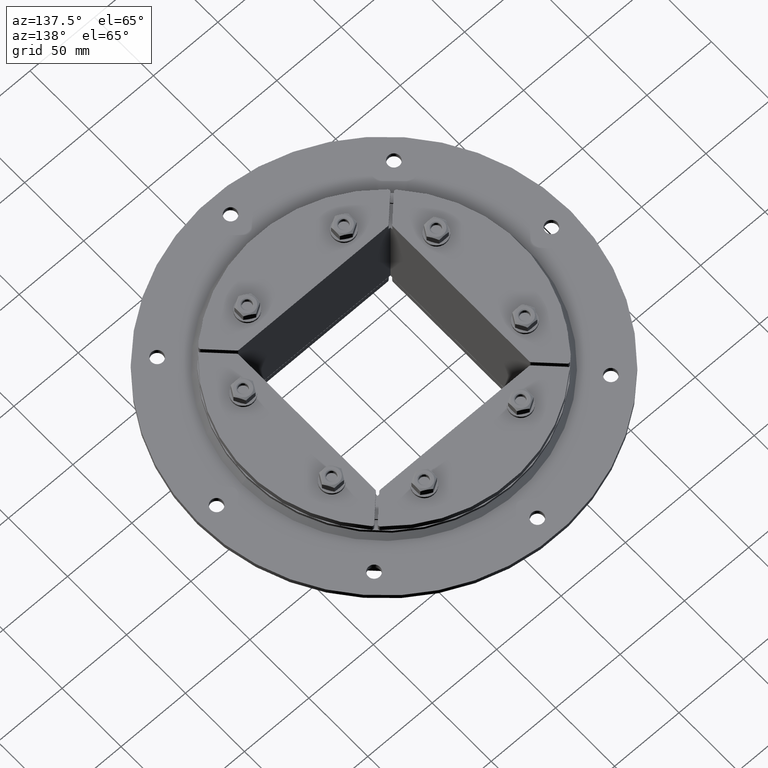
[diagram: clean part render]
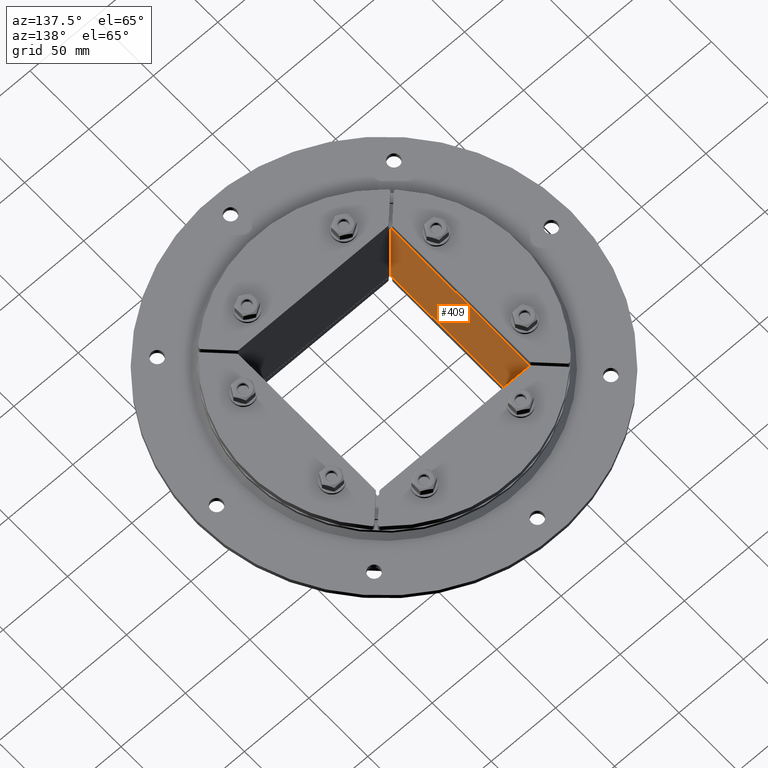
[diagram: same view with one face highlighted and labeled with its STEP entity id]
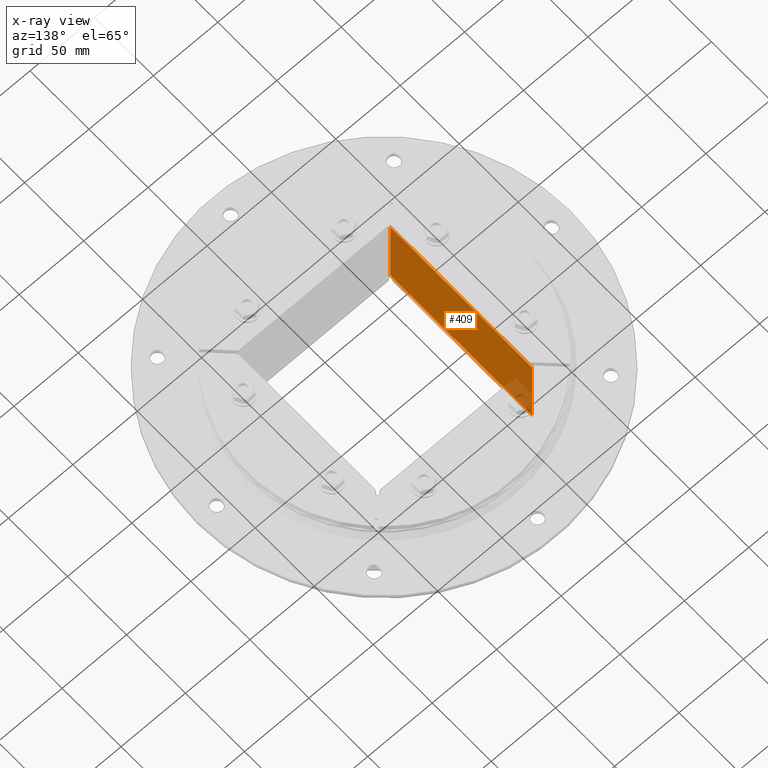
[diagram: x-ray of the same camera — body ghosted, the highlighted face saturated]
A machine part, auxiliary view. The second image highlights one B-rep face of the part: STEP entity #409.
The next image is the same camera in x-ray: the body ghosted, the highlighted face saturated — about 7% of this face is hidden behind the body in this view.
In plain terms, the highlighted planar face has unit normal (-1, 0, 0).
Its self-contained STEP definition (entity closure, byte-faithful):
#370=CARTESIAN_POINT('',(-60.0,-60.0,0.0));
#371=DIRECTION('',(-1.0,0.0,0.0));
#372=DIRECTION('',(0.0,1.0,0.0));
#373=AXIS2_PLACEMENT_3D('',#370,#371,#372);
#374=PLANE('',#373);
#375=CARTESIAN_POINT('',(-60.0,60.0,-65.0));
#376=VERTEX_POINT('',#375);
#377=CARTESIAN_POINT('',(-60.0,-60.0,-65.0));
#378=VERTEX_POINT('',#377);
#379=CARTESIAN_POINT('',(-60.0,60.0,-65.0));
#380=DIRECTION('',(0.0,-1.0,0.0));
#381=VECTOR('',#380,120.0);
#382=LINE('',#379,#381);
#383=EDGE_CURVE('',#376,#378,#382,.T.);
#384=ORIENTED_EDGE('',*,*,#383,.F.);
#385=CARTESIAN_POINT('',(-60.0,60.0,0.0));
#386=VERTEX_POINT('',#385);
#387=CARTESIAN_POINT('',(-60.0,60.0,0.0));
#388=DIRECTION('',(0.0,0.0,-1.0));
#389=VECTOR('',#388,65.0);
#390=LINE('',#387,#389);
#391=EDGE_CURVE('',#386,#376,#390,.T.);
#392=ORIENTED_EDGE('',*,*,#391,.F.);
#393=CARTESIAN_POINT('',(-60.0,-60.0,0.0));
#394=VERTEX_POINT('',#393);
#395=CARTESIAN_POINT('',(-60.0,-60.0,0.0));
#396=DIRECTION('',(0.0,1.0,0.0));
#397=VECTOR('',#396,120.0);
#398=LINE('',#395,#397);
#399=EDGE_CURVE('',#394,#386,#398,.T.);
#400=ORIENTED_EDGE('',*,*,#399,.F.);
#401=CARTESIAN_POINT('',(-60.0,-60.0,0.0));
#402=DIRECTION('',(0.0,0.0,-1.0));
#403=VECTOR('',#402,65.0);
#404=LINE('',#401,#403);
#405=EDGE_CURVE('',#394,#378,#404,.T.);
#406=ORIENTED_EDGE('',*,*,#405,.T.);
#407=EDGE_LOOP('',(#384,#392,#400,#406));
#408=FACE_OUTER_BOUND('',#407,.T.);
#409=ADVANCED_FACE('',(#408),#374,.F.);